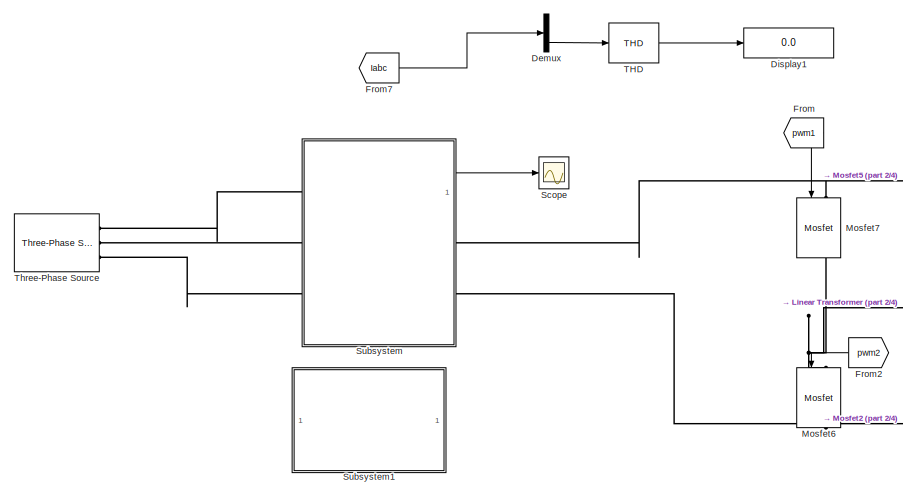
[diagram: root canvas - part 1/4, top left region]
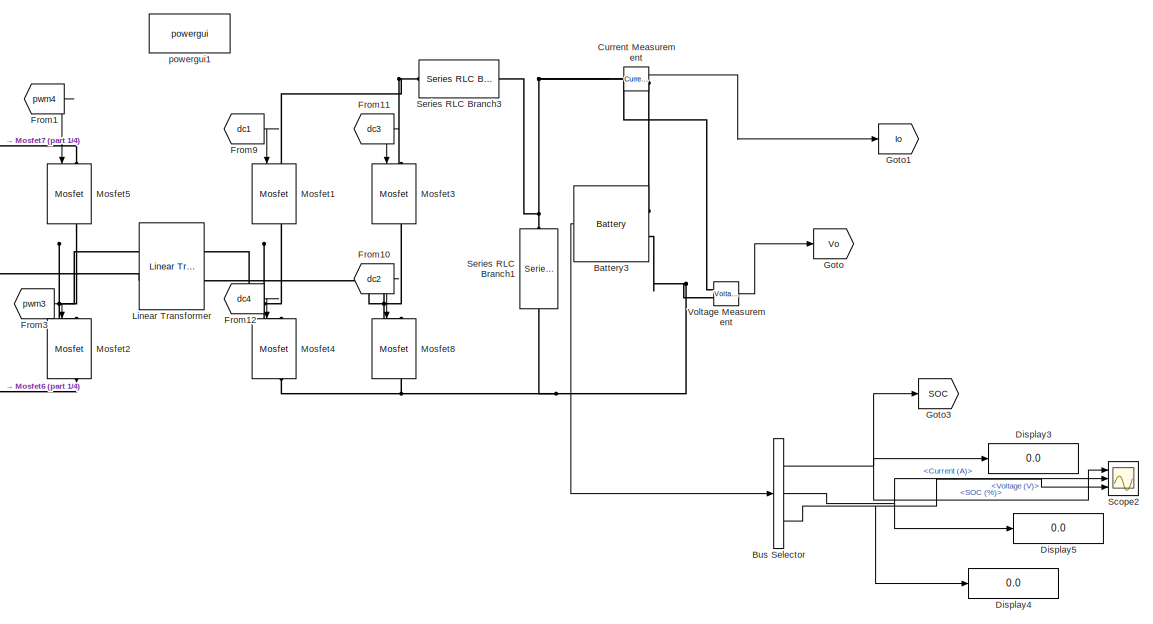
[diagram: root canvas - part 2/4, middle right region]
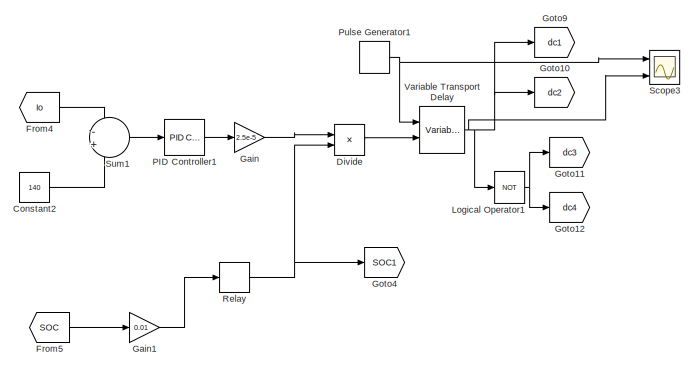
[diagram: root canvas - part 3/4, bottom right region]
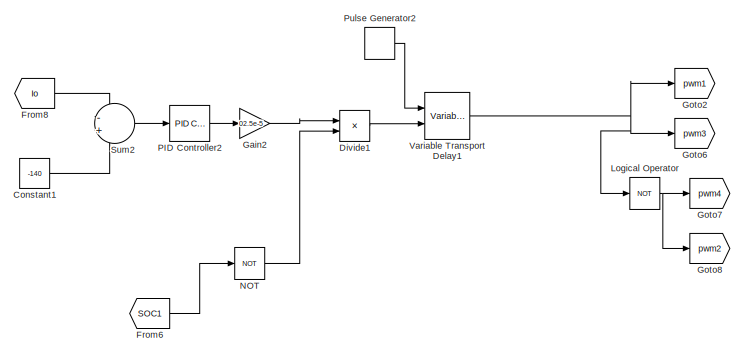
[diagram: root canvas - part 4/4, bottom center region]
MODEL slx_94a659a46257
KIND model
CONFIG AbsTol = auto
CONFIG EnableMultiTasking = off
CONFIG FixedStep = auto
CONFIG MaxStep = auto
CONFIG MinStep = auto
CONFIG RelTol = 1e-3
CONFIG SampleTimeConstraint = Unconstrained
CONFIG SolverName = ode23t
CONFIG StartTime = 0.0
CONFIG StopTime = 2
BLOCK [Reference] Battery3  REF=spsBatteryLib/Battery
  Ports = [0, 1, 0, 0, 0, 2]
  SourceBlock = spsBatteryLib/Battery
  SourceProductBaseCode = PS
  SourceType = Battery
BLOCK [BusSelector] Bus Selector
  OutputSignals = SOC (%),Current (A),Voltage (V)
  Ports = [1, 3]
BLOCK [Constant] Constant1
  Value = -140
BLOCK [Constant] Constant2
  Value = 140
BLOCK [Reference] Current Measurement  REF=spsCurrentMeasurementLib/Current Measurement
  Ports = [0, 1, 0, 0, 0, 1, 1]
  SourceBlock = spsCurrentMeasurementLib/Current Measurement
  SourceProductBaseCode = PS
  SourceType = Current Measurement
  UserDataPersistent = on
BLOCK [Demux] Demux
  Outputs = 3
  Ports = [1, 3]
BLOCK [Display] Display1
  Decimation = 1
  Ports = [1]
BLOCK [Display] Display3
  Decimation = 1
  Ports = [1]
BLOCK [Display] Display4
  Decimation = 1
  Ports = [1]
BLOCK [Display] Display5
  Decimation = 1
  Ports = [1]
BLOCK [Product] Divide
  Inputs = **
  Ports = [2, 1]
BLOCK [Product] Divide1
  Inputs = **
  Ports = [2, 1]
BLOCK [From] From
  GotoTag = pwm1
BLOCK [From] From1
  GotoTag = pwm4
BLOCK [From] From10
  GotoTag = dc2
BLOCK [From] From11
  GotoTag = dc3
BLOCK [From] From12
  GotoTag = dc4
BLOCK [From] From2
  GotoTag = pwm2
  NameLocation = top
BLOCK [From] From3
  GotoTag = pwm3
BLOCK [From] From4
  GotoTag = Io
BLOCK [From] From5
  GotoTag = SOC
BLOCK [From] From6
  GotoTag = SOC1
BLOCK [From] From7
  GotoTag = Iabc
  TagVisibility = global
BLOCK [From] From8
  GotoTag = Io
BLOCK [From] From9
  GotoTag = dc1
BLOCK [Gain] Gain
  Gain = 2.5e-5
BLOCK [Gain] Gain1
  Gain = 0.01
BLOCK [Gain] Gain2
  Gain = 02.5e-5
BLOCK [Goto] Goto
  GotoTag = Vo
BLOCK [Goto] Goto1
  GotoTag = Io
BLOCK [Goto] Goto10
  GotoTag = dc2
BLOCK [Goto] Goto11
  GotoTag = dc3
BLOCK [Goto] Goto12
  GotoTag = dc4
BLOCK [Goto] Goto2
  GotoTag = pwm1
BLOCK [Goto] Goto3
  GotoTag = SOC
BLOCK [Goto] Goto4
  GotoTag = SOC1
BLOCK [Goto] Goto6
  GotoTag = pwm3
BLOCK [Goto] Goto7
  GotoTag = pwm4
BLOCK [Goto] Goto8
  GotoTag = pwm2
BLOCK [Goto] Goto9
  GotoTag = dc1
BLOCK [Reference] Linear Transformer  REF=spsLinearTransformerLib/Linear Transformer
  Ports = [0, 0, 0, 0, 0, 2, 2]
  SourceBlock = spsLinearTransformerLib/Linear Transformer
  SourceProductBaseCode = PS
  SourceType = Linear Transformer
BLOCK [Logic] Logical Operator
  AllPortsSameDT = off
  Operator = NOT
  OutDataTypeStr = boolean
  Ports = [1, 1]
BLOCK [Logic] Logical Operator1
  AllPortsSameDT = off
  Operator = NOT
  OutDataTypeStr = boolean
  Ports = [1, 1]
BLOCK [Reference] Mosfet1  REF=spsMosfetLib/Mosfet
  NameLocation = left
  Ports = [1, 1, 0, 0, 0, 1, 1]
  SourceBlock = spsMosfetLib/Mosfet
  SourceProductBaseCode = PS
  SourceType = Mosfet
BLOCK [Reference] Mosfet2  REF=spsMosfetLib/Mosfet
  NameLocation = left
  Ports = [1, 1, 0, 0, 0, 1, 1]
  SourceBlock = spsMosfetLib/Mosfet
  SourceProductBaseCode = PS
  SourceType = Mosfet
BLOCK [Reference] Mosfet3  REF=spsMosfetLib/Mosfet
  NameLocation = left
  Ports = [1, 1, 0, 0, 0, 1, 1]
  SourceBlock = spsMosfetLib/Mosfet
  SourceProductBaseCode = PS
  SourceType = Mosfet
BLOCK [Reference] Mosfet4  REF=spsMosfetLib/Mosfet
  NameLocation = left
  Ports = [1, 1, 0, 0, 0, 1, 1]
  SourceBlock = spsMosfetLib/Mosfet
  SourceProductBaseCode = PS
  SourceType = Mosfet
BLOCK [Reference] Mosfet5  REF=spsMosfetLib/Mosfet
  NameLocation = left
  Ports = [1, 1, 0, 0, 0, 1, 1]
  SourceBlock = spsMosfetLib/Mosfet
  SourceProductBaseCode = PS
  SourceType = Mosfet
BLOCK [Reference] Mosfet6  REF=spsMosfetLib/Mosfet
  NameLocation = left
  Ports = [1, 1, 0, 0, 0, 1, 1]
  SourceBlock = spsMosfetLib/Mosfet
  SourceProductBaseCode = PS
  SourceType = Mosfet
BLOCK [Reference] Mosfet7  REF=spsMosfetLib/Mosfet
  NameLocation = left
  Ports = [1, 1, 0, 0, 0, 1, 1]
  SourceBlock = spsMosfetLib/Mosfet
  SourceProductBaseCode = PS
  SourceType = Mosfet
BLOCK [Reference] Mosfet8  REF=spsMosfetLib/Mosfet
  NameLocation = left
  Ports = [1, 1, 0, 0, 0, 1, 1]
  SourceBlock = spsMosfetLib/Mosfet
  SourceProductBaseCode = PS
  SourceType = Mosfet
BLOCK [Logic] NOT
  AllPortsSameDT = off
  IconShape = distinctive
  Operator = NOT
  OutDataTypeStr = boolean
  Ports = [1, 1]
BLOCK [Reference] PID Controller1  REF=slpidlib/PID Controller
  Ports = [1, 1]
  SourceBlock = slpidlib/PID Controller
  SourceProductBaseCode = SL
  SourceType = PID 1dof
BLOCK [Reference] PID Controller2  REF=slpidlib/PID Controller
  Ports = [1, 1]
  SourceBlock = slpidlib/PID Controller
  SourceProductBaseCode = SL
  SourceType = PID 1dof
BLOCK [DiscretePulseGenerator] Pulse Generator1
  Period = 1/10000
  Ports = [0, 1]
  PulseType = Time based
  PulseWidth = 50
BLOCK [DiscretePulseGenerator] Pulse Generator2
  Period = 1/10000
  Ports = [0, 1]
  PulseType = Time based
  PulseWidth = 50
BLOCK [Relay] Relay
  OffOutputValue = 1
  OffSwitchValue = 0.2
  OnOutputValue = 0
  OnSwitchValue = 0.8
BLOCK [Scope] Scope
  Floating = off
  NumInputPorts = 1
  Ports = [1]
  ScopeSpecificationString = Simulink.scopes.TimeScopeBlockCfg('CurrentConfiguration', extmgr.ConfigurationSet(extmgr.Configuration('Core','General UI',true),extmgr.Configuration('Core','Source UI',true),extmgr.Configuration('Sources','WiredSimulink',true),extmgr.Configuration('Visuals','Time Domain',true,'SerializedDisplays',{struct('MinYLimReal','-2201.77142','MaxYLimReal','19815.94327','YLabelReal','','MinYLimMag','  0.000...<+1428ch>
BLOCK [Scope] Scope2
  Floating = off
  NumInputPorts = 3
  Ports = [3]
  ScopeSpecificationString = Simulink.scopes.TimeScopeBlockCfg('CurrentConfiguration', extmgr.ConfigurationSet(extmgr.Configuration('Core','General UI',true),extmgr.Configuration('Core','Source UI',true),extmgr.Configuration('Sources','WiredSimulink',true,'DataLoggingVariableName','ScopeData2'),extmgr.Configuration('Visuals','Time Domain',true,'SerializedDisplays',{struct('MinYLimReal','79.9999986','MaxYLimReal','80.0000012',...<+2924ch>
BLOCK [Scope] Scope3
  Floating = off
  NumInputPorts = 3
  Ports = [3]
  ScopeSpecificationString = Simulink.scopes.TimeScopeBlockCfg('CurrentConfiguration', extmgr.ConfigurationSet(extmgr.Configuration('Core','General UI',true),extmgr.Configuration('Core','Source UI',true),extmgr.Configuration('Sources','WiredSimulink',true,'DataLoggingVariableName','ScopeData3'),extmgr.Configuration('Visuals','Time Domain',true,'SerializedDisplays',{struct('MinYLimReal','0.49856','MaxYLimReal','0.52877','YLabe...<+1483ch>
BLOCK [Reference] Series RLC Branch1  REF=spsSeriesRLCBranchLib/Series RLC Branch
  NameLocation = left
  Ports = [0, 0, 0, 0, 0, 1, 1]
  SourceBlock = spsSeriesRLCBranchLib/Series RLC Branch
  SourceProductBaseCode = PS
  SourceType = Series RLC Branch
BLOCK [Reference] Series RLC Branch3  REF=spsSeriesRLCBranchLib/Series RLC Branch
  Ports = [0, 0, 0, 0, 0, 1, 1]
  SourceBlock = spsSeriesRLCBranchLib/Series RLC Branch
  SourceProductBaseCode = PS
  SourceType = Series RLC Branch
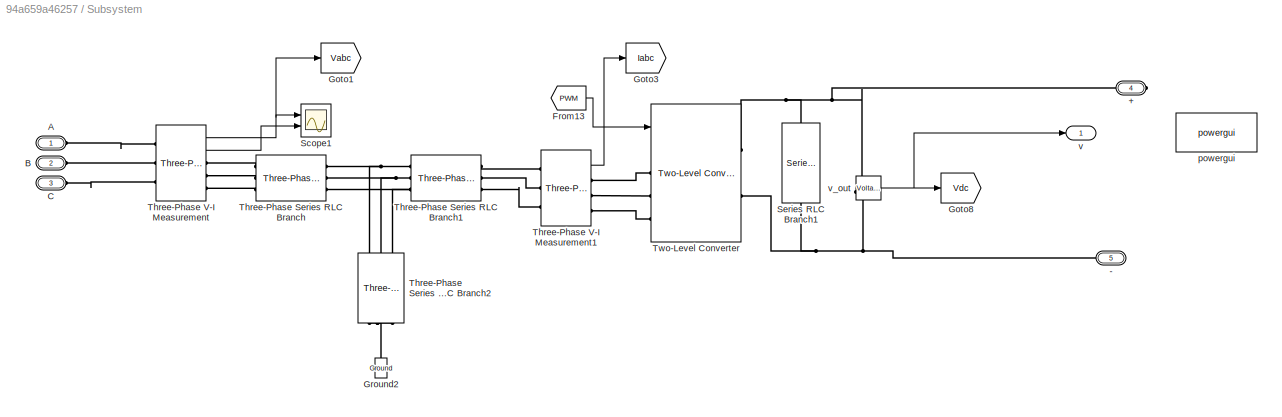
BLOCK [SubSystem] Subsystem
  Ports = [0, 1, 0, 0, 0, 3, 2]
  RequestExecContextInheritance = off
BLOCK [PMIOPort] Subsystem/+
  NameLocation = top
  Port = 4
  Side = Right
BLOCK [PMIOPort] Subsystem/-
  NameLocation = top
  Port = 5
  Side = Right
BLOCK [PMIOPort] Subsystem/A
  Side = Left
BLOCK [PMIOPort] Subsystem/B
  Port = 2
  Side = Left
BLOCK [PMIOPort] Subsystem/C
  Port = 3
  Side = Left
BLOCK [From] Subsystem/From13
  GotoTag = PWM
  TagVisibility = global
BLOCK [Goto] Subsystem/Goto1
  GotoTag = Vabc
  TagVisibility = global
BLOCK [Goto] Subsystem/Goto3
  GotoTag = Iabc
  TagVisibility = global
BLOCK [Goto] Subsystem/Goto8
  GotoTag = Vdc
  TagVisibility = global
BLOCK [Reference] Subsystem/Ground2  REF=spsGroundLib/Ground
  NameLocation = right
  Ports = [0, 0, 0, 0, 0, 1]
  SourceBlock = spsGroundLib/Ground
  SourceProductBaseCode = PS
  SourceType = Ground
BLOCK [Scope] Subsystem/Scope1
  Floating = off
  NumInputPorts = 2
  Ports = [2]
  ScopeSpecificationString = Simulink.scopes.TimeScopeBlockCfg('CurrentConfiguration', extmgr.ConfigurationSet(extmgr.Configuration('Core','General UI',true),extmgr.Configuration('Core','Source UI',true),extmgr.Configuration('Sources','WiredSimulink',true,'DataLoggingVariableName','ScopeData1'),extmgr.Configuration('Visuals','Time Domain',true,'SerializedDisplays',{struct('MinYLimReal','-842.98687','MaxYLimReal','853.82619','...<+1652ch>
BLOCK [Reference] Subsystem/Series RLC Branch1  REF=spsSeriesRLCBranchLib/Series RLC Branch
  NameLocation = left
  Ports = [0, 0, 0, 0, 0, 1, 1]
  SourceBlock = spsSeriesRLCBranchLib/Series RLC Branch
  SourceProductBaseCode = PS
  SourceType = Series RLC Branch
BLOCK [Reference] Subsystem/Three-Phase Series RLC Branch  REF=spsThreePhaseSeriesRLCBranchLib/Three-Phase
Series RLC Branch
  AttributesFormatString = \n
  Ports = [0, 0, 0, 0, 0, 3, 3]
  SourceBlock = spsThreePhaseSeriesRLCBranchLib/Three-Phase\nSeries RLC Branch
  SourceProductBaseCode = PS
  SourceType = Three-Phase Series RLC Branch
BLOCK [Reference] Subsystem/Three-Phase Series RLC Branch1  REF=spsThreePhaseSeriesRLCBranchLib/Three-Phase
Series RLC Branch
  AttributesFormatString = \n
  Ports = [0, 0, 0, 0, 0, 3, 3]
  SourceBlock = spsThreePhaseSeriesRLCBranchLib/Three-Phase\nSeries RLC Branch
  SourceProductBaseCode = PS
  SourceType = Three-Phase Series RLC Branch
BLOCK [Reference] Subsystem/Three-Phase Series RLC Branch2  REF=spsThreePhaseSeriesRLCBranchLib/Three-Phase
Series RLC Branch
  AttributesFormatString = \n
  NameLocation = right
  Ports = [0, 0, 0, 0, 0, 3, 3]
  SourceBlock = spsThreePhaseSeriesRLCBranchLib/Three-Phase\nSeries RLC Branch
  SourceProductBaseCode = PS
  SourceType = Three-Phase Series RLC Branch
BLOCK [Reference] Subsystem/Three-Phase V-I Measurement  REF=spsThreePhaseVIMeasurementLib/Three-Phase
V-I Measurement
  Ports = [0, 2, 0, 0, 0, 3, 3]
  SourceBlock = spsThreePhaseVIMeasurementLib/Three-Phase\nV-I Measurement
  SourceProductBaseCode = PS
  SourceType = Three-Phase VI Measurement
BLOCK [Reference] Subsystem/Three-Phase V-I Measurement1  REF=spsThreePhaseVIMeasurementLib/Three-Phase
V-I Measurement
  Ports = [0, 1, 0, 0, 0, 3, 3]
  SourceBlock = spsThreePhaseVIMeasurementLib/Three-Phase\nV-I Measurement
  SourceProductBaseCode = PS
  SourceType = Three-Phase VI Measurement
BLOCK [Reference] Subsystem/Two-Level Converter  REF=spsTwoLevelConverterLib/Two-Level Converter
  Ports = [2, 0, 0, 0, 0, 3, 2]
  SourceBlock = spsTwoLevelConverterLib/Two-Level Converter
  SourceProductBaseCode = PS
  SourceType = Two-Level Converter
BLOCK [Reference] Subsystem/powergui  REF=spspowerguiLib/powergui
  Ports = []
  Priority = 1
  SourceBlock = spspowerguiLib/powergui
  SourceProductBaseCode = PS
  SourceType = PSB option menu block
BLOCK [Outport] Subsystem/v
BLOCK [Reference] Subsystem/v_out  REF=spsVoltageMeasurementLib/Voltage Measurement
  Ports = [0, 1, 0, 0, 0, 2]
  SourceBlock = spsVoltageMeasurementLib/Voltage Measurement
  SourceProductBaseCode = PS
  SourceType = Voltage Measurement
  UserDataPersistent = on
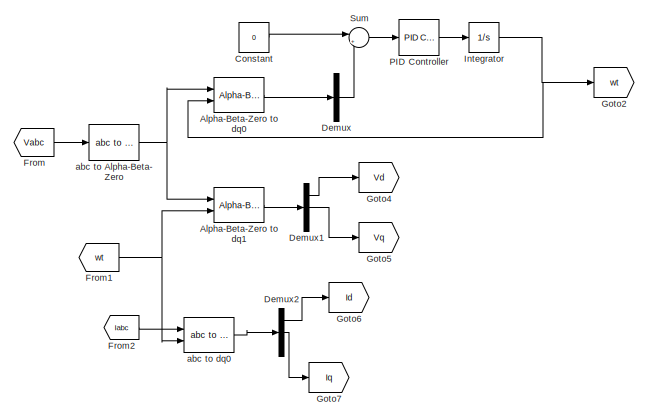
[diagram: Subsystem1 - part 1/2, middle left region]
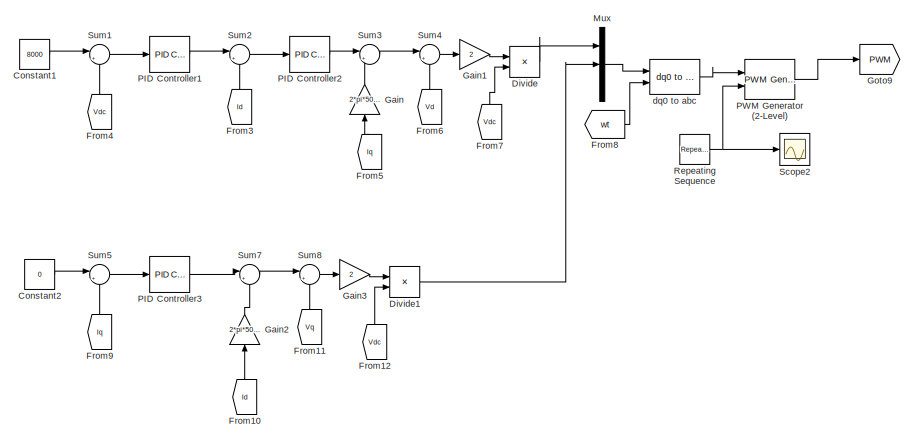
[diagram: Subsystem1 - part 2/2, right side, full height]
BLOCK [SubSystem] Subsystem1
  Ports = []
  RequestExecContextInheritance = off
BLOCK [Reference] Subsystem1/Alpha-Beta-Zero to dq0  REF=spsAlphaBetaZerotodq0Lib/Alpha-Beta-Zero
to dq0
  Ports = [2, 1]
  SourceBlock = spsAlphaBetaZerotodq0Lib/Alpha-Beta-Zero\nto dq0
  SourceProductBaseCode = PS
  SourceType = Alpha-Beta-Zero to dq0 Transformation
BLOCK [Reference] Subsystem1/Alpha-Beta-Zero to dq1  REF=spsAlphaBetaZerotodq0Lib/Alpha-Beta-Zero
to dq0
  Ports = [2, 1]
  SourceBlock = spsAlphaBetaZerotodq0Lib/Alpha-Beta-Zero\nto dq0
  SourceProductBaseCode = PS
  SourceType = Alpha-Beta-Zero to dq0 Transformation
BLOCK [Constant] Subsystem1/Constant
  Value = 0
BLOCK [Constant] Subsystem1/Constant1
  Value = 8000
BLOCK [Constant] Subsystem1/Constant2
  NameLocation = right
  Value = 0
BLOCK [Demux] Subsystem1/Demux
  Outputs = 3
  Ports = [1, 3]
BLOCK [Demux] Subsystem1/Demux1
  Outputs = 3
  Ports = [1, 3]
BLOCK [Demux] Subsystem1/Demux2
  Outputs = 3
  Ports = [1, 3]
BLOCK [Product] Subsystem1/Divide
  Inputs = */
  Ports = [2, 1]
BLOCK [Product] Subsystem1/Divide1
  Inputs = */
  Ports = [2, 1]
BLOCK [From] Subsystem1/From
  GotoTag = Vabc
  TagVisibility = global
BLOCK [From] Subsystem1/From1
  GotoTag = wt
  TagVisibility = global
BLOCK [From] Subsystem1/From10
  GotoTag = Id
  NameLocation = right
  TagVisibility = global
BLOCK [From] Subsystem1/From11
  GotoTag = Vq
  NameLocation = right
  TagVisibility = global
BLOCK [From] Subsystem1/From12
  GotoTag = Vdc
  NameLocation = right
  TagVisibility = global
BLOCK [From] Subsystem1/From2
  GotoTag = Iabc
  TagVisibility = global
BLOCK [From] Subsystem1/From3
  GotoTag = Id
  NameLocation = right
  TagVisibility = global
BLOCK [From] Subsystem1/From4
  GotoTag = Vdc
  NameLocation = right
  TagVisibility = global
BLOCK [From] Subsystem1/From5
  GotoTag = Iq
  NameLocation = right
  TagVisibility = global
BLOCK [From] Subsystem1/From6
  GotoTag = Vd
  NameLocation = right
  TagVisibility = global
BLOCK [From] Subsystem1/From7
  GotoTag = Vdc
  NameLocation = right
  TagVisibility = global
BLOCK [From] Subsystem1/From8
  GotoTag = wt
  TagVisibility = global
BLOCK [From] Subsystem1/From9
  GotoTag = Iq
  NameLocation = right
  TagVisibility = global
BLOCK [Gain] Subsystem1/Gain
  Gain = 2*pi*50*1000e-6
  NameLocation = right
BLOCK [Gain] Subsystem1/Gain1
  Gain = 2
BLOCK [Gain] Subsystem1/Gain2
  Gain = 2*pi*50*1000e-6
  NameLocation = right
BLOCK [Gain] Subsystem1/Gain3
  Gain = 2
BLOCK [Goto] Subsystem1/Goto2
  GotoTag = wt
  TagVisibility = global
BLOCK [Goto] Subsystem1/Goto4
  GotoTag = Vd
  TagVisibility = global
BLOCK [Goto] Subsystem1/Goto5
  GotoTag = Vq
  TagVisibility = global
BLOCK [Goto] Subsystem1/Goto6
  GotoTag = Id
  TagVisibility = global
BLOCK [Goto] Subsystem1/Goto7
  GotoTag = Iq
  TagVisibility = global
BLOCK [Goto] Subsystem1/Goto9
  GotoTag = PWM
  TagVisibility = global
BLOCK [Integrator] Subsystem1/Integrator
  Ports = [1, 1]
BLOCK [Mux] Subsystem1/Mux
  DisplayOption = bar
  Inputs = 3
  Ports = [3, 1]
BLOCK [Reference] Subsystem1/PID Controller  REF=slpidlib/PID Controller
  Ports = [1, 1]
  SourceBlock = slpidlib/PID Controller
  SourceProductBaseCode = SL
  SourceType = PID 1dof
BLOCK [Reference] Subsystem1/PID Controller1  REF=slpidlib/PID Controller
  Ports = [1, 1]
  SourceBlock = slpidlib/PID Controller
  SourceProductBaseCode = SL
  SourceType = PID 1dof
BLOCK [Reference] Subsystem1/PID Controller2  REF=slpidlib/PID Controller
  Ports = [1, 1]
  SourceBlock = slpidlib/PID Controller
  SourceProductBaseCode = SL
  SourceType = PID 1dof
BLOCK [Reference] Subsystem1/PID Controller3  REF=slpidlib/PID Controller
  Ports = [1, 1]
  SourceBlock = slpidlib/PID Controller
  SourceProductBaseCode = SL
  SourceType = PID 1dof
BLOCK [Reference] Subsystem1/PWM Generator (2-Level)  REF=spsPWMGenerator2LevelLib/PWM Generator
(2-Level)
  Ports = [2, 1]
  SourceBlock = spsPWMGenerator2LevelLib/PWM Generator\n(2-Level)
  SourceProductBaseCode = PS
  SourceType = PWM Generator (2-Level)
BLOCK [Reference] Subsystem1/Repeating Sequence  REF=simulink/Sources/Repeating
Sequence
  Ports = [0, 1]
  SourceBlock = simulink/Sources/Repeating\nSequence
  SourceProductBaseCode = SL
  SourceType = Repeating table
BLOCK [Scope] Subsystem1/Scope2
  Floating = off
  NumInputPorts = 1
  Ports = [1]
  ScopeSpecificationString = Simulink.scopes.TimeScopeBlockCfg('CurrentConfiguration', extmgr.ConfigurationSet(extmgr.Configuration('Core','General UI',true),extmgr.Configuration('Core','Source UI',true),extmgr.Configuration('Sources','WiredSimulink',true,'DataLoggingVariableName','ScopeData1'),extmgr.Configuration('Visuals','Time Domain',true,'SerializedDisplays',{struct('MinYLimReal','-1.25','MaxYLimReal','1.25','YLabelReal...<+1736ch>
BLOCK [Sum] Subsystem1/Sum
  Inputs = |+-
  Ports = [2, 1]
BLOCK [Sum] Subsystem1/Sum1
  Inputs = |+-
  Ports = [2, 1]
BLOCK [Sum] Subsystem1/Sum2
  Inputs = |++
  Ports = [2, 1]
BLOCK [Sum] Subsystem1/Sum3
  Inputs = |++
  Ports = [2, 1]
BLOCK [Sum] Subsystem1/Sum4
  Inputs = |++
  Ports = [2, 1]
BLOCK [Sum] Subsystem1/Sum5
  Inputs = |++
  Ports = [2, 1]
BLOCK [Sum] Subsystem1/Sum7
  Inputs = |+-
  Ports = [2, 1]
BLOCK [Sum] Subsystem1/Sum8
  Inputs = |++
  Ports = [2, 1]
BLOCK [Reference] Subsystem1/abc to Alpha-Beta-Zero  REF=spsabctoAlphaBetaZeroLib/abc to
Alpha-Beta-Zero
  Ports = [1, 1]
  SourceBlock = spsabctoAlphaBetaZeroLib/abc to\nAlpha-Beta-Zero
  SourceProductBaseCode = PS
  SourceType = abc to Alpha-Beta-Zero Transformation
BLOCK [Reference] Subsystem1/abc to dq0  REF=spsabctodq0Lib/abc to dq0
  Ports = [2, 1]
  SourceBlock = spsabctodq0Lib/abc to dq0
  SourceProductBaseCode = PS
  SourceType = abc to dq0 Transformation
BLOCK [Reference] Subsystem1/dq0 to abc  REF=spsdq0toabcLib/dq0 to abc
  Ports = [2, 1]
  SourceBlock = spsdq0toabcLib/dq0 to abc
  SourceProductBaseCode = PS
  SourceType = dq0 to abc Transformation
BLOCK [Sum] Sum1
  Inputs = -+
  Ports = [2, 1]
BLOCK [Sum] Sum2
  Inputs = -+
  Ports = [2, 1]
BLOCK [Reference] THD  REF=spsTHDLib/THD
  Ports = [1, 1]
  SourceBlock = spsTHDLib/THD
  SourceProductBaseCode = PS
  SourceType = THD
BLOCK [Reference] Three-Phase Source  REF=spsThreePhaseSourceLib/Three-Phase Source
  Ports = [0, 0, 0, 0, 0, 0, 3]
  SourceBlock = spsThreePhaseSourceLib/Three-Phase Source
  SourceProductBaseCode = PS
  SourceType = Three-Phase Source
BLOCK [VariableTransportDelay] Variable Transport Delay
  MaximumDelay = 10
  Ports = [2, 1]
BLOCK [VariableTransportDelay] Variable Transport Delay1
  MaximumDelay = 10
  Ports = [2, 1]
BLOCK [Reference] Voltage Measurement  REF=spsVoltageMeasurementLib/Voltage Measurement
  Ports = [0, 1, 0, 0, 0, 2]
  SourceBlock = spsVoltageMeasurementLib/Voltage Measurement
  SourceProductBaseCode = PS
  SourceType = Voltage Measurement
  UserDataPersistent = on
BLOCK [Reference] powergui1  REF=spspowerguiLib/powergui
  Ports = []
  Priority = 1
  SourceBlock = spspowerguiLib/powergui
  SourceProductBaseCode = PS
  SourceType = PSB option menu block
LINE Battery3:1 -> Bus Selector:1
NET Bus Selector:1 -> Display3:1, Goto3:1, Scope2:1
NET Bus Selector:2 -> Display5:1, Scope2:2
NET Bus Selector:3 -> Display4:1, Scope2:3
LINE Constant1:1 -> Sum2:2
LINE Constant2:1 -> Sum1:2
LINE Current Measurement:1 -> Goto1:1
LINE Demux:3 -> THD:1
LINE Divide1:1 -> Variable Transport Delay1:2
LINE Divide:1 -> Variable Transport Delay:2
LINE From10:1 -> Mosfet8:1
LINE From11:1 -> Mosfet3:1
LINE From12:1 -> Mosfet4:1
LINE From1:1 -> Mosfet5:1
LINE From2:1 -> Mosfet6:1
LINE From3:1 -> Mosfet2:1
LINE From4:1 -> Sum1:1
LINE From5:1 -> Gain1:1
LINE From6:1 -> NOT:1
LINE From7:1 -> Demux:1
LINE From8:1 -> Sum2:1
LINE From9:1 -> Mosfet1:1
LINE From:1 -> Mosfet7:1
LINE Gain1:1 -> Relay:1
LINE Gain2:1 -> Divide1:1
LINE Gain:1 -> Divide:1
NET Logical Operator1:1 -> Goto11:1, Goto12:1
NET Logical Operator:1 -> Goto7:1, Goto8:1
LINE NOT:1 -> Divide1:2
LINE PID Controller1:1 -> Gain:1
LINE PID Controller2:1 -> Gain2:1
NET Pulse Generator1:1 -> Scope3:1, Variable Transport Delay:1
LINE Pulse Generator2:1 -> Variable Transport Delay1:1
NET Relay:1 -> Divide:2, Goto4:1
LINE Subsystem/From13:1 -> Subsystem/Two-Level Converter:1
LINE Subsystem/Three-Phase V-I Measurement1:1 -> Subsystem/Goto3:1
NET Subsystem/Three-Phase V-I Measurement:1 -> Subsystem/Goto1:1, Subsystem/Scope1:1
LINE Subsystem/Three-Phase V-I Measurement:2 -> Subsystem/Scope1:2
NET Subsystem/v_out:1 -> Subsystem/Goto8:1, Subsystem/v:1
LINE Subsystem1/Alpha-Beta-Zero to dq0:1 -> Subsystem1/Demux:1
LINE Subsystem1/Alpha-Beta-Zero to dq1:1 -> Subsystem1/Demux1:1
LINE Subsystem1/Constant1:1 -> Subsystem1/Sum1:1
LINE Subsystem1/Constant2:1 -> Subsystem1/Sum5:1
LINE Subsystem1/Constant:1 -> Subsystem1/Sum:1
LINE Subsystem1/Demux1:1 -> Subsystem1/Goto4:1
LINE Subsystem1/Demux1:2 -> Subsystem1/Goto5:1
LINE Subsystem1/Demux2:1 -> Subsystem1/Goto6:1
LINE Subsystem1/Demux2:2 -> Subsystem1/Goto7:1
LINE Subsystem1/Demux:2 -> Subsystem1/Sum:2
LINE Subsystem1/Divide1:1 -> Subsystem1/Mux:2
LINE Subsystem1/Divide:1 -> Subsystem1/Mux:1
LINE Subsystem1/From10:1 -> Subsystem1/Gain2:1
LINE Subsystem1/From11:1 -> Subsystem1/Sum8:2
LINE Subsystem1/From12:1 -> Subsystem1/Divide1:2
NET Subsystem1/From1:1 -> Subsystem1/Alpha-Beta-Zero to dq1:2, Subsystem1/abc to dq0:2
LINE Subsystem1/From2:1 -> Subsystem1/abc to dq0:1
LINE Subsystem1/From3:1 -> Subsystem1/Sum2:2
LINE Subsystem1/From4:1 -> Subsystem1/Sum1:2
LINE Subsystem1/From5:1 -> Subsystem1/Gain:1
LINE Subsystem1/From6:1 -> Subsystem1/Sum4:2
LINE Subsystem1/From7:1 -> Subsystem1/Divide:2
LINE Subsystem1/From8:1 -> Subsystem1/dq0 to abc:2
LINE Subsystem1/From9:1 -> Subsystem1/Sum5:2
LINE Subsystem1/From:1 -> Subsystem1/abc to Alpha-Beta-Zero:1
LINE Subsystem1/Gain1:1 -> Subsystem1/Divide:1
LINE Subsystem1/Gain2:1 -> Subsystem1/Sum7:2
LINE Subsystem1/Gain3:1 -> Subsystem1/Divide1:1
LINE Subsystem1/Gain:1 -> Subsystem1/Sum3:2
NET Subsystem1/Integrator:1 -> Subsystem1/Alpha-Beta-Zero to dq0:2, Subsystem1/Goto2:1
LINE Subsystem1/Mux:1 -> Subsystem1/dq0 to abc:1
LINE Subsystem1/PID Controller1:1 -> Subsystem1/Sum2:1
LINE Subsystem1/PID Controller2:1 -> Subsystem1/Sum3:1
LINE Subsystem1/PID Controller3:1 -> Subsystem1/Sum7:1
LINE Subsystem1/PID Controller:1 -> Subsystem1/Integrator:1
LINE Subsystem1/PWM Generator (2-Level):1 -> Subsystem1/Goto9:1
NET Subsystem1/Repeating Sequence:1 -> Subsystem1/PWM Generator (2-Level):2, Subsystem1/Scope2:1
LINE Subsystem1/Sum1:1 -> Subsystem1/PID Controller1:1
LINE Subsystem1/Sum2:1 -> Subsystem1/PID Controller2:1
LINE Subsystem1/Sum3:1 -> Subsystem1/Sum4:1
LINE Subsystem1/Sum4:1 -> Subsystem1/Gain1:1
LINE Subsystem1/Sum5:1 -> Subsystem1/PID Controller3:1
LINE Subsystem1/Sum7:1 -> Subsystem1/Sum8:1
LINE Subsystem1/Sum8:1 -> Subsystem1/Gain3:1
LINE Subsystem1/Sum:1 -> Subsystem1/PID Controller:1
NET Subsystem1/abc to Alpha-Beta-Zero:1 -> Subsystem1/Alpha-Beta-Zero to dq0:1, Subsystem1/Alpha-Beta-Zero to dq1:1
LINE Subsystem1/abc to dq0:1 -> Subsystem1/Demux2:1
LINE Subsystem1/dq0 to abc:1 -> Subsystem1/PWM Generator (2-Level):1
LINE Subsystem:1 -> Scope:1
LINE Sum1:1 -> PID Controller1:1
LINE Sum2:1 -> PID Controller2:1
LINE THD:1 -> Display1:1
NET Variable Transport Delay1:1 -> Goto2:1, Goto6:1, Logical Operator:1
NET Variable Transport Delay:1 -> Goto10:1, Goto9:1, Logical Operator1:1, Scope3:3
LINE Voltage Measurement:1 -> Goto:1
PLINE Battery3:LConn1 -- Current Measurement:RConn1
PNET net1: Battery3:LConn2 -- Mosfet4:RConn1 -- Mosfet8:RConn1 -- Series RLC Branch1:RConn1 -- Voltage Measurement:LConn2
PNET net2: Current Measurement:LConn1 -- Series RLC Branch1:LConn1 -- Series RLC Branch3:RConn1 -- Voltage Measurement:LConn1
PNET net3: Linear Transformer:LConn1 -- Mosfet2:LConn1 -- Mosfet5:RConn1
PNET net4: Linear Transformer:LConn2 -- Mosfet6:LConn1 -- Mosfet7:RConn1
PNET net5: Linear Transformer:RConn1 -- Mosfet1:RConn1 -- Mosfet4:LConn1
PNET net6: Linear Transformer:RConn2 -- Mosfet3:RConn1 -- Mosfet8:LConn1
PNET net7: Mosfet1:LConn1 -- Mosfet3:LConn1 -- Series RLC Branch3:LConn1
PNET net8: Mosfet2:RConn1 -- Mosfet6:RConn1 -- Subsystem:RConn2
PNET net9: Mosfet5:LConn1 -- Mosfet7:LConn1 -- Subsystem:RConn1
PNET net10: Subsystem/+:RConn1 -- Subsystem/Series RLC Branch1:LConn1 -- Subsystem/Two-Level Converter:RConn1 -- Subsystem/v_out:LConn1
PNET net11: Subsystem/-:RConn1 -- Subsystem/Series RLC Branch1:RConn1 -- Subsystem/Two-Level Converter:RConn2 -- Subsystem/v_out:LConn2
PLINE Subsystem/A:RConn1 -- Subsystem/Three-Phase V-I Measurement:LConn1
PLINE Subsystem/B:RConn1 -- Subsystem/Three-Phase V-I Measurement:LConn2
PLINE Subsystem/C:RConn1 -- Subsystem/Three-Phase V-I Measurement:LConn3
PNET net12: Subsystem/Ground2:LConn1 -- Subsystem/Three-Phase Series RLC Branch2:LConn1 -- Subsystem/Three-Phase Series RLC Branch2:LConn2 -- Subsystem/Three-Phase Series RLC Branch2:LConn3
PNET net13: Subsystem/Three-Phase Series RLC Branch1:LConn1 -- Subsystem/Three-Phase Series RLC Branch2:RConn1 -- Subsystem/Three-Phase Series RLC Branch:RConn1
PNET net14: Subsystem/Three-Phase Series RLC Branch1:LConn2 -- Subsystem/Three-Phase Series RLC Branch2:RConn2 -- Subsystem/Three-Phase Series RLC Branch:RConn2
PNET net15: Subsystem/Three-Phase Series RLC Branch1:LConn3 -- Subsystem/Three-Phase Series RLC Branch2:RConn3 -- Subsystem/Three-Phase Series RLC Branch:RConn3
PLINE Subsystem/Three-Phase Series RLC Branch1:RConn1 -- Subsystem/Three-Phase V-I Measurement1:LConn1
PLINE Subsystem/Three-Phase Series RLC Branch1:RConn2 -- Subsystem/Three-Phase V-I Measurement1:LConn2
PLINE Subsystem/Three-Phase Series RLC Branch1:RConn3 -- Subsystem/Three-Phase V-I Measurement1:LConn3
PLINE Subsystem/Three-Phase Series RLC Branch:LConn1 -- Subsystem/Three-Phase V-I Measurement:RConn1
PLINE Subsystem/Three-Phase Series RLC Branch:LConn2 -- Subsystem/Three-Phase V-I Measurement:RConn2
PLINE Subsystem/Three-Phase Series RLC Branch:LConn3 -- Subsystem/Three-Phase V-I Measurement:RConn3
PLINE Subsystem/Three-Phase V-I Measurement1:RConn1 -- Subsystem/Two-Level Converter:LConn1
PLINE Subsystem/Three-Phase V-I Measurement1:RConn2 -- Subsystem/Two-Level Converter:LConn2
PLINE Subsystem/Three-Phase V-I Measurement1:RConn3 -- Subsystem/Two-Level Converter:LConn3
PLINE Subsystem:LConn1 -- Three-Phase Source:RConn1
PLINE Subsystem:LConn2 -- Three-Phase Source:RConn2
PLINE Subsystem:LConn3 -- Three-Phase Source:RConn3
note: NET lines group one-source signal fan-out (src -> all destinations, sorted); 1:1 wires keep LINE; PNET lines group multi-terminal physical nets as a canonical sorted terminal list (undirected conserving connections); 2-terminal nets keep the pairwise PLINE form
